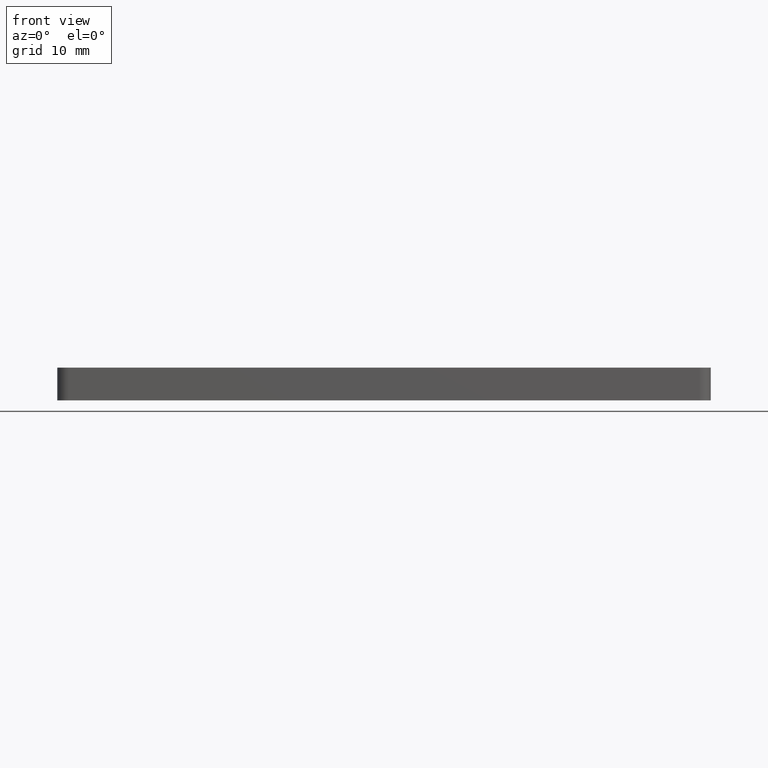
[diagram: clean part render]
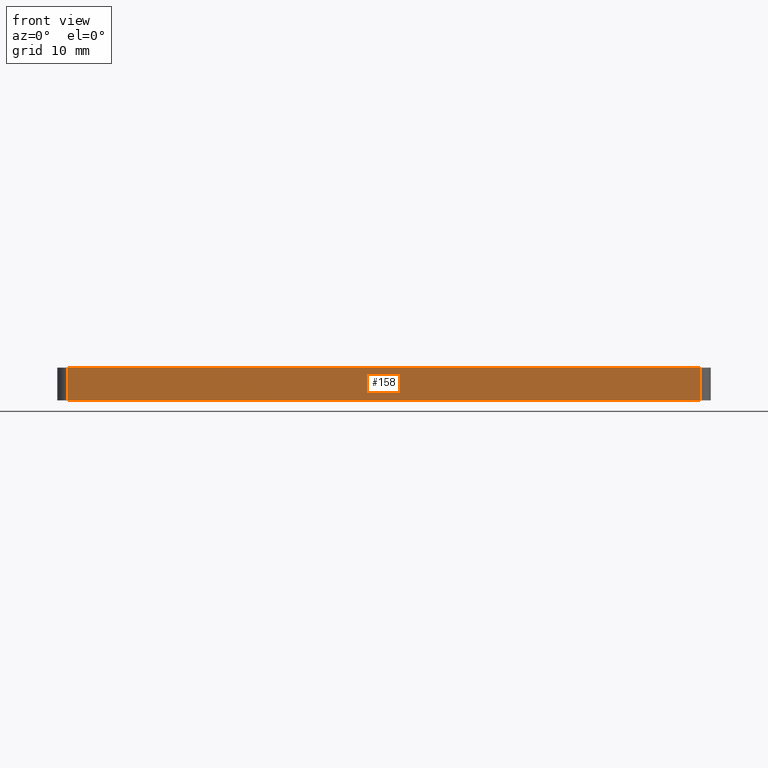
[diagram: same view with one face highlighted and labeled with its STEP entity id]
A machine part, front view. The second image highlights one B-rep face of the part: STEP entity #158.
In plain terms, the highlighted planar face has unit normal (0, 1, 0).
Its self-contained STEP definition (entity closure, byte-faithful):
#93=CARTESIAN_POINT('',(-59.0,-14.999999999999993,0.0));
#94=VERTEX_POINT('',#93);
#102=CARTESIAN_POINT('',(-59.0,-14.999999999999993,3.0));
#103=VERTEX_POINT('',#102);
#104=CARTESIAN_POINT('',(-59.0,-14.999999999999993,3.0));
#105=DIRECTION('',(0.0,0.0,-1.0));
#106=VECTOR('',#105,3.0);
#107=LINE('',#104,#106);
#108=EDGE_CURVE('',#103,#94,#107,.T.);
#128=CARTESIAN_POINT('',(-61.900000000000006,-14.999999999999993,-0.150000000000000));
#129=DIRECTION('',(0.0,1.0,0.0));
#130=DIRECTION('',(0.0,0.0,1.0));
#131=AXIS2_PLACEMENT_3D('',#128,#129,#130);
#132=PLANE('',#131);
#133=CARTESIAN_POINT('',(-1.0,-14.999999999999993,0.0));
#134=VERTEX_POINT('',#133);
#135=CARTESIAN_POINT('',(-59.0,-14.999999999999993,0.0));
#136=DIRECTION('',(1.0,0.0,0.0));
#137=VECTOR('',#136,58.0);
#138=LINE('',#135,#137);
#139=EDGE_CURVE('',#94,#134,#138,.T.);
#140=ORIENTED_EDGE('',*,*,#139,.T.);
#141=CARTESIAN_POINT('',(-1.0,-14.999999999999993,3.0));
#142=VERTEX_POINT('',#141);
#143=CARTESIAN_POINT('',(-1.0,-14.999999999999993,3.0));
#144=DIRECTION('',(0.0,0.0,-1.0));
#145=VECTOR('',#144,3.0);
#146=LINE('',#143,#145);
#147=EDGE_CURVE('',#142,#134,#146,.T.);
#148=ORIENTED_EDGE('',*,*,#147,.F.);
#149=CARTESIAN_POINT('',(-59.0,-14.999999999999993,3.0));
#150=DIRECTION('',(1.0,0.0,0.0));
#151=VECTOR('',#150,58.0);
#152=LINE('',#149,#151);
#153=EDGE_CURVE('',#103,#142,#152,.T.);
#154=ORIENTED_EDGE('',*,*,#153,.F.);
#155=ORIENTED_EDGE('',*,*,#108,.T.);
#156=EDGE_LOOP('',(#140,#148,#154,#155));
#157=FACE_OUTER_BOUND('',#156,.T.);
#158=ADVANCED_FACE('',(#157),#132,.F.);